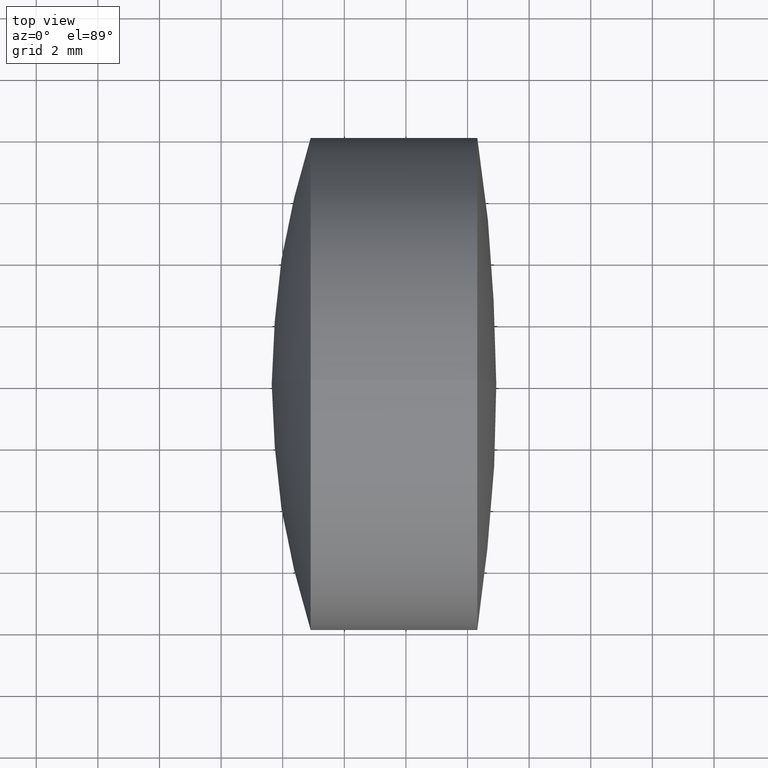
[diagram: clean part render]
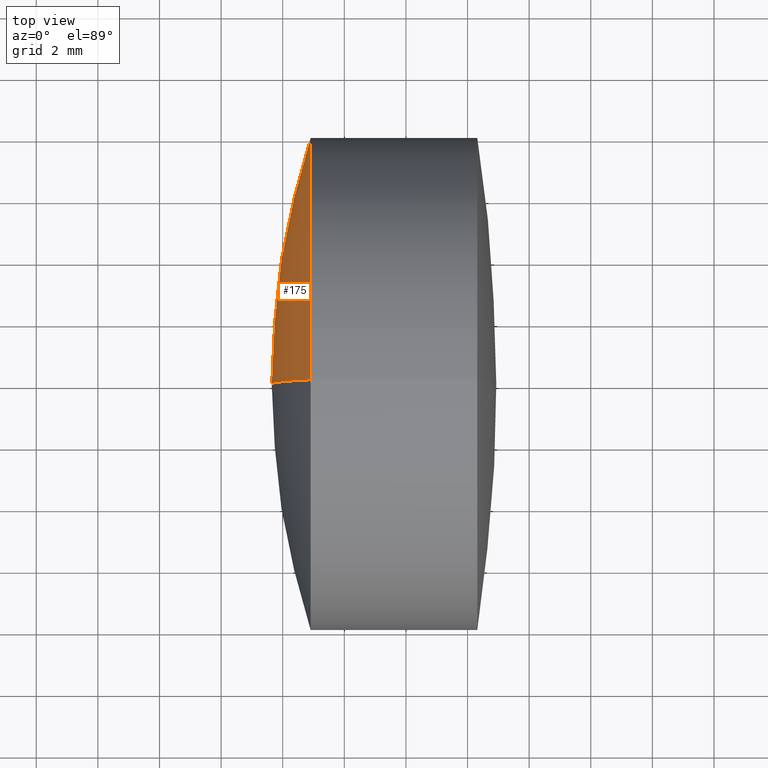
[diagram: same view with one face highlighted and labeled with its STEP entity id]
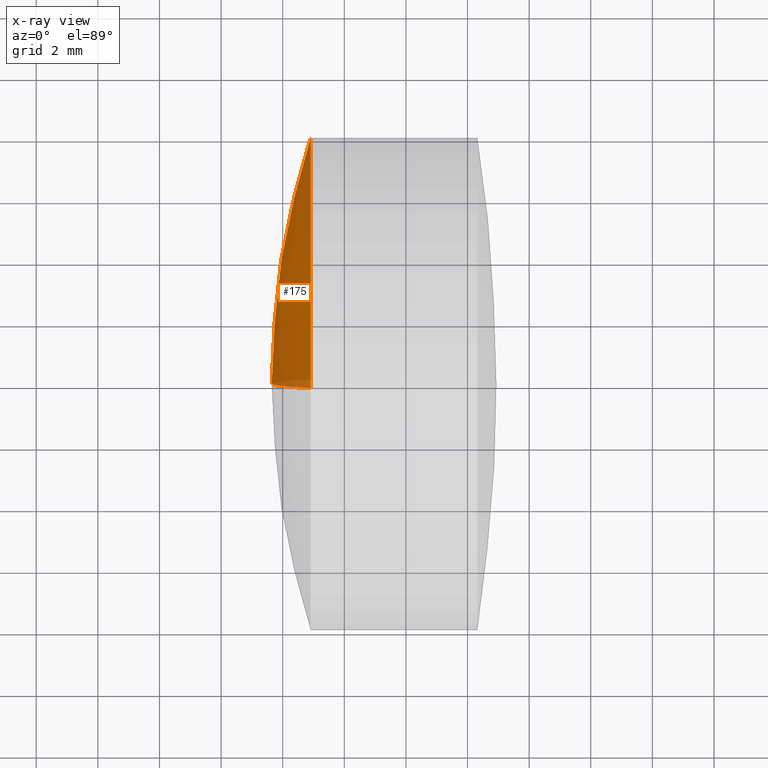
[diagram: x-ray of the same camera — body ghosted, the highlighted face saturated]
A machine part, top view. The second image highlights one B-rep face of the part: STEP entity #175.
The next image is the same camera in x-ray: the body ghosted, the highlighted face saturated — about 3% of this face is hidden behind the body in this view.
In plain terms, the highlighted spherical surface has radius 25.956 mm.
Its self-contained STEP definition (entity closure, byte-faithful):
#6 = CARTESIAN_POINT ( 'NONE',  ( 45.59904347957313300, 0.0000000000000000000, -1.740547722561040700E-016 ) ) ;
#20 = AXIS2_PLACEMENT_3D ( 'NONE', #6, #240, #212 ) ;
#24 = EDGE_CURVE ( 'NONE', #224, #88, #103, .T. ) ;
#35 = AXIS2_PLACEMENT_3D ( 'NONE', #308, #114, #149 ) ;
#56 = CIRCLE ( 'NONE', #131, 25.95600000000000700 ) ;
#58 = DIRECTION ( 'NONE',  ( -0.0000000000000000000, 1.000000000000000000, 1.224646799147353200E-016 ) ) ;
#77 = CARTESIAN_POINT ( 'NONE',  ( 45.59904347957313300, 0.0000000000000000000, -1.740547722561040700E-016 ) ) ;
#88 = VERTEX_POINT ( 'NONE', #128 ) ;
#90 = EDGE_CURVE ( 'NONE', #201, #88, #56, .T. ) ;
#92 = CARTESIAN_POINT ( 'NONE',  ( 20.90665728463440900, 0.0000000000000000000, 7.999999999999996400 ) ) ;
#102 = AXIS2_PLACEMENT_3D ( 'NONE', #77, #58, #118 ) ;
#103 = CIRCLE ( 'NONE', #102, 25.95600000000000700 ) ;
#114 = DIRECTION ( 'NONE',  ( -1.000000000000000000, -0.0000000000000000000, -0.0000000000000000000 ) ) ;
#118 = DIRECTION ( 'NONE',  ( 0.0000000000000000000, -1.224646799147353200E-016, 1.000000000000000000 ) ) ;
#128 = CARTESIAN_POINT ( 'NONE',  ( 19.64304347957312300, 0.0000000000000000000, 1.415291843677331300E-015 ) ) ;
#131 = AXIS2_PLACEMENT_3D ( 'NONE', #135, #295, #214 ) ;
#135 = CARTESIAN_POINT ( 'NONE',  ( 45.59904347957313300, 0.0000000000000000000, -1.740547722561040700E-016 ) ) ;
#138 = SPHERICAL_SURFACE ( 'NONE', #20, 25.95600000000000700 ) ;
#147 = ORIENTED_EDGE ( 'NONE', *, *, #90, .F. ) ;
#149 = DIRECTION ( 'NONE',  ( 0.0000000000000000000, 0.0000000000000000000, 1.000000000000000000 ) ) ;
#175 = ADVANCED_FACE ( 'NONE', ( #287 ), #138, .T. ) ;
#195 = ORIENTED_EDGE ( 'NONE', *, *, #346, .T. ) ;
#201 = VERTEX_POINT ( 'NONE', #92 ) ;
#212 = DIRECTION ( 'NONE',  ( 0.0000000000000000000, 0.0000000000000000000, 1.000000000000000000 ) ) ;
#214 = DIRECTION ( 'NONE',  ( 0.0000000000000000000, 0.0000000000000000000, -1.000000000000000000 ) ) ;
#224 = VERTEX_POINT ( 'NONE', #275 ) ;
#240 = DIRECTION ( 'NONE',  ( 0.0000000000000000000, 1.000000000000000000, 0.0000000000000000000 ) ) ;
#275 = CARTESIAN_POINT ( 'NONE',  ( 20.90665728463440900, 9.797174393178823700E-016, -7.999999999999996400 ) ) ;
#287 = FACE_OUTER_BOUND ( 'NONE', #291, .T. ) ;
#288 = ORIENTED_EDGE ( 'NONE', *, *, #24, .T. ) ;
#291 = EDGE_LOOP ( 'NONE', ( #195, #288, #147 ) ) ;
#295 = DIRECTION ( 'NONE',  ( 0.0000000000000000000, -1.000000000000000000, 0.0000000000000000000 ) ) ;
#308 = CARTESIAN_POINT ( 'NONE',  ( 20.90665728463440900, 0.0000000000000000000, 0.0000000000000000000 ) ) ;
#332 = CIRCLE ( 'NONE', #35, 8.000000000000000000 ) ;
#346 = EDGE_CURVE ( 'NONE', #201, #224, #332, .T. ) ;